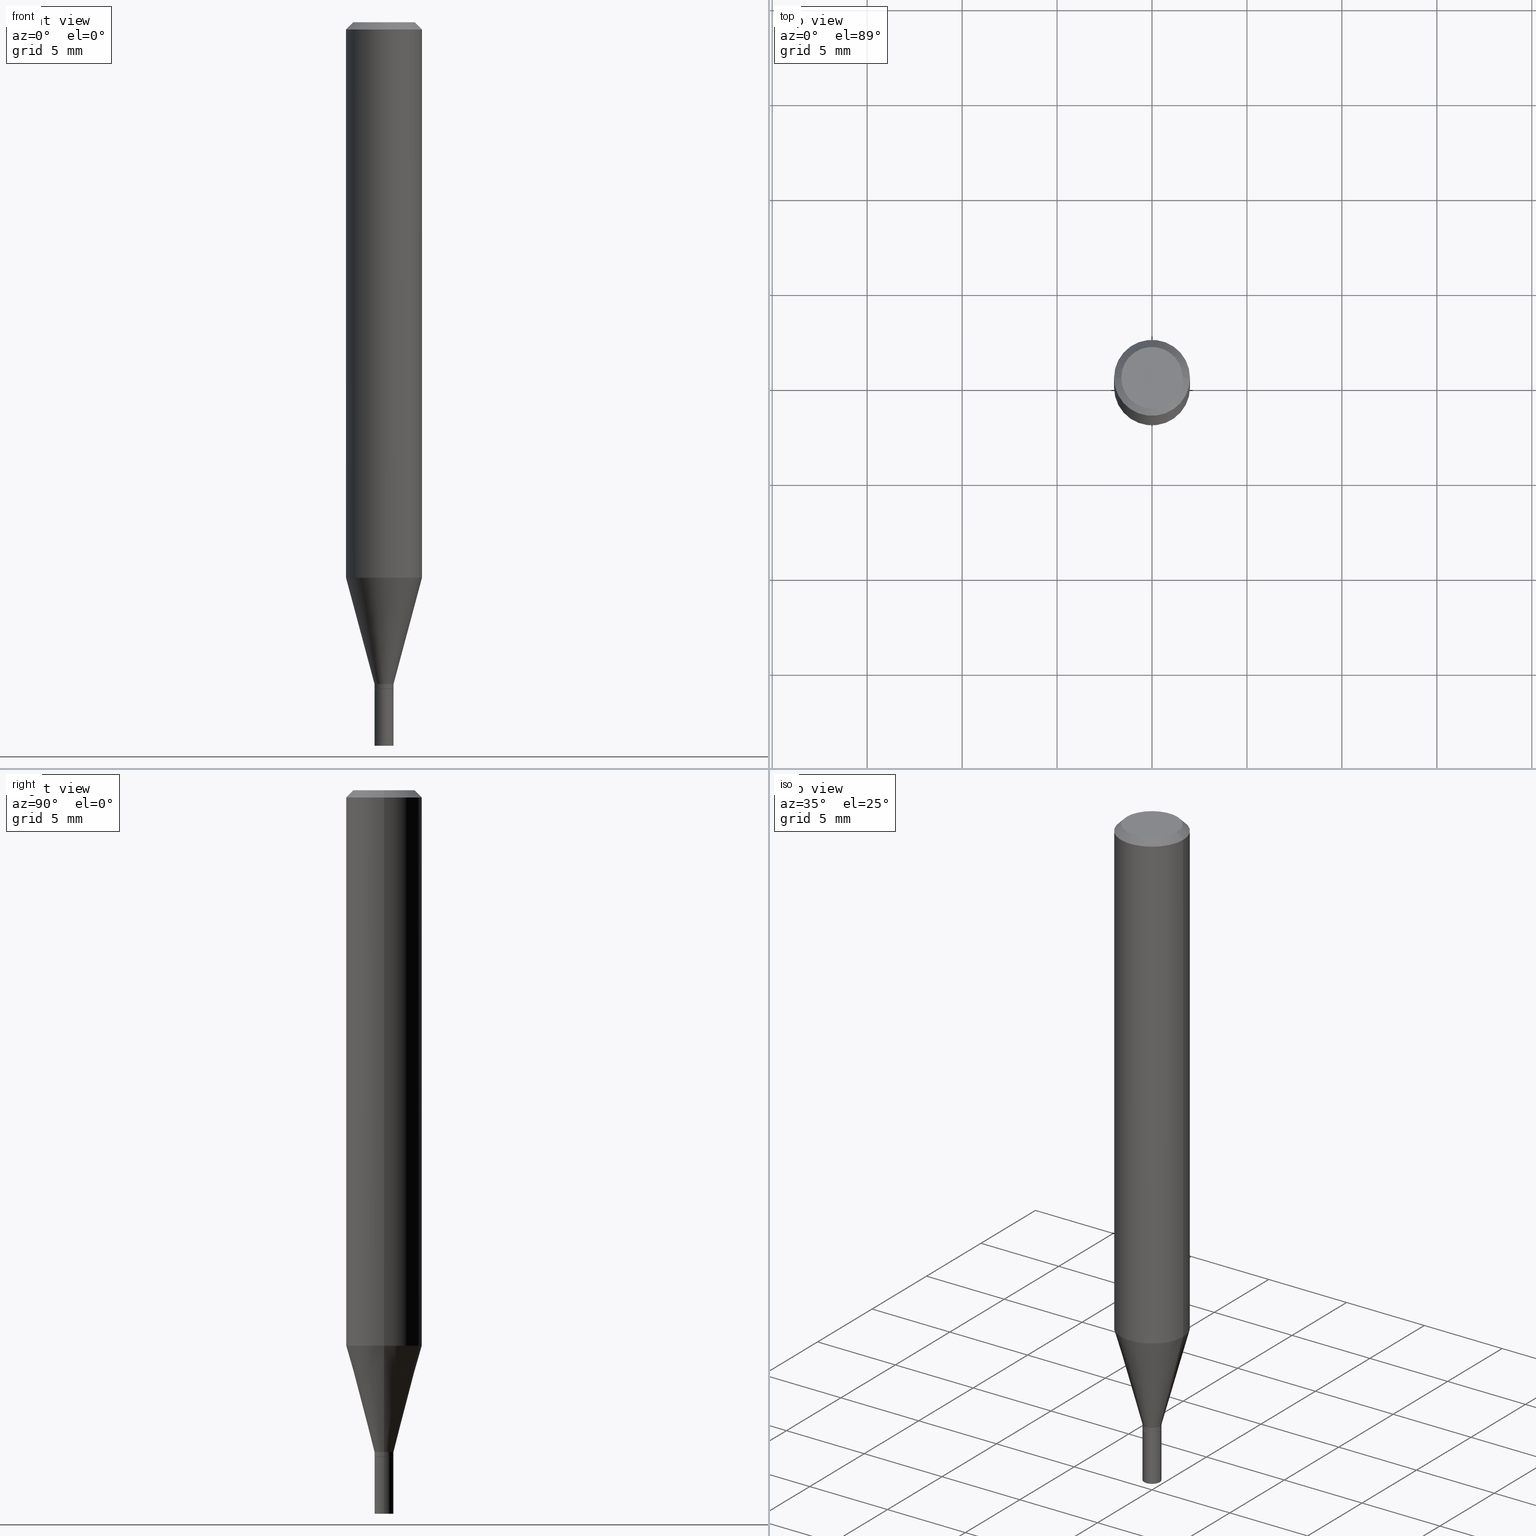
[diagram: canonical four-view strip — front | top / right | iso, engineering-drawing reading convention]
A machine part, canonical four-view strip (front | top / right | iso — engineering-drawing reading convention). The complete STEP part file that produces these views, byte-faithful:
ISO-10303-21;
HEADER;
FILE_DESCRIPTION (( 'STEP AP203' ),
    '1' );
FILE_NAME ('02367.STEP',
    '2024-03-18T20:15:41',
    ( '' ),
    ( '' ),
    'SwSTEP 2.0',
    'SolidWorks 2023',
    '' );
FILE_SCHEMA (( 'CONFIG_CONTROL_DESIGN' ));
ENDSEC;

DATA;
#1 = DIRECTION ( 'NONE',  ( -2.438088387897960049E-29, 3.491481338843145188E-15, 1.000000000000000000 ) ) ;
#2 = EDGE_CURVE ( 'NONE', #303, #4, #144, .T. ) ;
#3 = AXIS2_PLACEMENT_3D ( 'NONE', #102, #423, #57 ) ;
#4 = VERTEX_POINT ( 'NONE', #46 ) ;
#5 = DIRECTION ( 'NONE',  ( -1.000000000000000000, 6.982962677686265922E-15, 0.000000000000000000 ) ) ;
#6 = ORIENTED_EDGE ( 'NONE', *, *, #391, .F. ) ;
#7 = CARTESIAN_POINT ( 'NONE',  ( 3.379393343267239894E-29, -4.824878062147343257E-15, -1.381900000000000128 ) ) ;
#8 = EDGE_CURVE ( 'NONE', #4, #303, #204, .T. ) ;
#9 = ORIENTED_EDGE ( 'NONE', *, *, #327, .F. ) ;
#10 = CC_DESIGN_PERSON_AND_ORGANIZATION_ASSIGNMENT ( #414, #83, ( #49 ) ) ;
#11 = CARTESIAN_POINT ( 'NONE',  ( -0.01969999999999963794, -4.650335477948058966E-15, -1.372000000000000108 ) ) ;
#12 = ORIENTED_EDGE ( 'NONE', *, *, #249, .F. ) ;
#13 = AXIS2_PLACEMENT_3D ( 'NONE', #215, #34, #389 ) ;
#14 = CARTESIAN_POINT ( 'NONE',  ( 0.07875000000000000056, -6.022805309504406221E-16, -0.01499999999999999944 ) ) ;
#15 = CIRCLE ( 'NONE', #285, 0.01969999999999999876 ) ;
#16 = VERTEX_POINT ( 'NONE', #274 ) ;
#17 = LENGTH_MEASURE_WITH_UNIT ( LENGTH_MEASURE( 0.02539999999999999897 ), #344 );
#18 = ORIENTED_EDGE ( 'NONE', *, *, #230, .F. ) ;
#19 = APPROVAL_ROLE ( '' ) ;
#20 = DIRECTION ( 'NONE',  ( 1.000000000000000000, -6.982962677686265922E-15, 4.876176775795935232E-29 ) ) ;
#21 = CONICAL_SURFACE ( 'NONE', #210, 0.01919999999999999832, 0.7853981633974718157 ) ;
#22 = PERSON_AND_ORGANIZATION_ROLE ( 'classification_officer' ) ;
#23 = DIRECTION ( 'NONE',  ( -2.445468806185136597E-29, 3.491481338843145583E-15, 1.000000000000000000 ) ) ;
#24 = AXIS2_PLACEMENT_3D ( 'NONE', #385, #121, #131 ) ;
#25 = CC_DESIGN_DATE_AND_TIME_ASSIGNMENT ( #416, #86, ( #232 ) ) ;
#26 = ORIENTED_EDGE ( 'NONE', *, *, #174, .F. ) ;
#27 = EDGE_CURVE ( 'NONE', #338, #184, #408, .T. ) ;
#28 = CALENDAR_DATE ( 2024, 18, 3 ) ;
#29 = CYLINDRICAL_SURFACE ( 'NONE', #13, 0.01969999999999978019 ) ;
#30 = CARTESIAN_POINT ( 'NONE',  ( -0.01919999999999999832, -4.688453856881404057E-15, -1.381900000000000128 ) ) ;
#31 = CARTESIAN_POINT ( 'NONE',  ( 3.668203209277705088E-31, -5.237222008264718399E-17, -0.01499999999999999944 ) ) ;
#32 = EDGE_LOOP ( 'NONE', ( #162, #300, #190, #116 ) ) ;
#33 = CARTESIAN_POINT ( 'NONE',  ( 0.01969999999999991896, -4.960696686228340179E-15, -1.381400000000000183 ) ) ;
#34 = DIRECTION ( 'NONE',  ( -2.445468806185136597E-29, 3.491481338843145583E-15, 1.000000000000000000 ) ) ;
#35 = AXIS2_PLACEMENT_3D ( 'NONE', #381, #101, #209 ) ;
#36 = DIRECTION ( 'NONE',  ( -2.445468806185136597E-29, 3.491481338843145583E-15, 1.000000000000000000 ) ) ;
#37 = APPROVAL ( #347, 'UNSPECIFIED' ) ;
#38 = ORIENTED_EDGE ( 'NONE', *, *, #77, .T. ) ;
#39 = DIRECTION ( 'NONE',  ( 1.000000000000000000, -6.982962677686265922E-15, 4.876176775795935793E-29 ) ) ;
#40 = EDGE_LOOP ( 'NONE', ( #111, #38 ) ) ;
#41 = AXIS2_PLACEMENT_3D ( 'NONE', #229, #1, #403 ) ;
#42 = DIRECTION ( 'NONE',  ( 1.000000000000000000, -6.982962677686265922E-15, 4.876176775795935232E-29 ) ) ;
#43 = EDGE_LOOP ( 'NONE', ( #454, #194, #264, #372 ) ) ;
#44 = LINE ( 'NONE', #68, #443 ) ;
#45 = VERTEX_POINT ( 'NONE', #419 ) ;
#46 = CARTESIAN_POINT ( 'NONE',  ( -0.07874999999999997280, -3.461315713929970124E-15, -1.151622399813057029 ) ) ;
#47 = VECTOR ( 'NONE', #143, 39.37007874015748143 ) ;
#48 = COORDINATED_UNIVERSAL_TIME_OFFSET ( 5, 0, .BEHIND. ) ;
#49 = PRODUCT ( '02367', '02367', '', ( #161 ) ) ;
#50 = DIRECTION ( 'NONE',  ( -2.445468806185136597E-29, 3.491481338843145583E-15, 1.000000000000000000 ) ) ;
#51 = APPROVAL_ROLE ( '' ) ;
#52 = DIRECTION ( 'NONE',  ( 1.000000000000000000, -6.982962677686265922E-15, 4.947888571036530338E-29 ) ) ;
#53 = PERSON_AND_ORGANIZATION ( #138, #251 ) ;
#54 = CARTESIAN_POINT ( 'NONE',  ( 3.668203209277705088E-31, -5.237222008264718399E-17, -0.01499999999999999944 ) ) ;
#55 = CARTESIAN_POINT ( 'NONE',  ( 3.355183202086007133E-29, -4.790312396892795908E-15, -1.372000000000000108 ) ) ;
#56 = EDGE_CURVE ( 'NONE', #433, #258, #265, .T. ) ;
#57 = DIRECTION ( 'NONE',  ( -1.000000000000000000, 6.982962677686265922E-15, -4.876176775795935793E-29 ) ) ;
#58 = CARTESIAN_POINT ( 'NONE',  ( -1.361870578287719451E-44, 1.944390252692970891E-30, 5.568955019353527485E-16 ) ) ;
#59 = AXIS2_PLACEMENT_3D ( 'NONE', #187, #115, #263 ) ;
#60 = ADVANCED_FACE ( 'NONE', ( #167 ), #237, .T. ) ;
#61 = CARTESIAN_POINT ( 'NONE',  ( 0.01969999999999963794, -4.927876761643212756E-15, -1.372000000000000108 ) ) ;
#62 = EDGE_CURVE ( 'NONE', #16, #105, #191, .T. ) ;
#63 = CARTESIAN_POINT ( 'NONE',  ( 3.668203209277704895E-29, -5.237222008264718177E-15, -1.500000000000000222 ) ) ;
#64 = EDGE_LOOP ( 'NONE', ( #335, #196, #294, #9 ) ) ;
#65 = LINE ( 'NONE', #387, #422 ) ;
#66 = ORIENTED_EDGE ( 'NONE', *, *, #149, .F. ) ;
#67 = LOCAL_TIME ( 16, 15, 41.00000000000000000, #311 ) ;
#68 = CARTESIAN_POINT ( 'NONE',  ( 0.01969999999999963794, -4.927876761643212756E-15, -1.372000000000000108 ) ) ;
#69 = ORIENTED_EDGE ( 'NONE', *, *, #62, .T. ) ;
#70 = DIRECTION ( 'NONE',  ( -2.445468806185136597E-29, 3.491481338843145583E-15, 1.000000000000000000 ) ) ;
#71 = ORIENTED_EDGE ( 'NONE', *, *, #195, .F. ) ;
#72 = PLANE ( 'NONE',  #383 ) ;
#73 = ADVANCED_FACE ( 'NONE', ( #84 ), #199, .T. ) ;
#74 = ORIENTED_EDGE ( 'NONE', *, *, #429, .T. ) ;
#75 = CIRCLE ( 'NONE', #179, 0.01969999999999991896 ) ;
#76 = CARTESIAN_POINT ( 'NONE',  ( -0.07875000000000000056, 4.975360907851462665E-16, -0.01499999999999999944 ) ) ;
#77 = EDGE_CURVE ( 'NONE', #168, #346, #227, .T. ) ;
#78 = VERTEX_POINT ( 'NONE', #345 ) ;
#79 = LINE ( 'NONE', #11, #426 ) ;
#80 = AXIS2_PLACEMENT_3D ( 'NONE', #235, #267, #417 ) ;
#81 = EDGE_LOOP ( 'NONE', ( #404, #182, #324, #453 ) ) ;
#82 = ORIENTED_EDGE ( 'NONE', *, *, #8, .T. ) ;
#83 = PERSON_AND_ORGANIZATION_ROLE ( 'design_owner' ) ;
#84 = FACE_OUTER_BOUND ( 'NONE', #156, .T. ) ;
#85 = APPROVAL_PERSON_ORGANIZATION ( #198, #37, #19 ) ;
#86 = DATE_TIME_ROLE ( 'creation_date' ) ;
#87 = DIRECTION ( 'NONE',  ( 1.000000000000000000, -6.982962677686267499E-15, 4.876176775795935793E-29 ) ) ;
#88 = APPROVAL ( #357, 'UNSPECIFIED' ) ;
#89 = ADVANCED_FACE ( 'NONE', ( #447 ), #124, .T. ) ;
#90 = PERSON_AND_ORGANIZATION ( #138, #251 ) ;
#91 = FACE_OUTER_BOUND ( 'NONE', #439, .T. ) ;
#92 =( NAMED_UNIT ( * ) SI_UNIT ( $, .STERADIAN. ) SOLID_ANGLE_UNIT ( ) );
#93 = DIRECTION ( 'NONE',  ( 1.000000000000000000, -6.982962677686265922E-15, 4.876176775795935232E-29 ) ) ;
#94 = ADVANCED_FACE ( 'NONE', ( #91 ), #165, .T. ) ;
#95 = CC_DESIGN_APPROVAL ( #88, ( #241 ) ) ;
#96 = EDGE_CURVE ( 'NONE', #130, #45, #243, .T. ) ;
#97 = DIRECTION ( 'NONE',  ( 1.000000000000000000, -6.982962677686252511E-15, 0.000000000000000000 ) ) ;
#98 = DIRECTION ( 'NONE',  ( -2.445468806185136597E-29, 3.491481338843145583E-15, 1.000000000000000000 ) ) ;
#99 = DIRECTION ( 'NONE',  ( 2.438088387897960049E-29, -3.491481338843145188E-15, -1.000000000000000000 ) ) ;
#100 = AXIS2_PLACEMENT_3D ( 'NONE', #145, #394, #257 ) ;
#101 = DIRECTION ( 'NONE',  ( -2.445468806185136597E-29, 3.491481338843145583E-15, 1.000000000000000000 ) ) ;
#102 = CARTESIAN_POINT ( 'NONE',  ( 4.451638707024993845E-16, 0.06375000000000000111, 5.586581561642585620E-17 ) ) ;
#103 = EDGE_CURVE ( 'NONE', #45, #256, #245, .T. ) ;
#104 = FACE_OUTER_BOUND ( 'NONE', #332, .T. ) ;
#105 = VERTEX_POINT ( 'NONE', #314 ) ;
#106 = DIRECTION ( 'NONE',  ( 1.000000000000000000, -6.982962677686252511E-15, 0.000000000000000000 ) ) ;
#107 = EDGE_CURVE ( 'NONE', #105, #368, #65, .T. ) ;
#108 = ORIENTED_EDGE ( 'NONE', *, *, #400, .F. ) ;
#109 = EDGE_CURVE ( 'NONE', #4, #258, #424, .T. ) ;
#110 = DIRECTION ( 'NONE',  ( 1.000000000000000000, -6.982962677686252511E-15, 0.000000000000000000 ) ) ;
#111 = ORIENTED_EDGE ( 'NONE', *, *, #149, .T. ) ;
#112 = CARTESIAN_POINT ( 'NONE',  ( 3.668203209277705088E-31, -5.237222008264718399E-17, -0.01499999999999999944 ) ) ;
#113 = ORIENTED_EDGE ( 'NONE', *, *, #313, .T. ) ;
#114 = LOCAL_TIME ( 16, 15, 41.00000000000000000, #350 ) ;
#115 = DIRECTION ( 'NONE',  ( 2.445468806185136597E-29, -3.491481338843145583E-15, -1.000000000000000000 ) ) ;
#116 = ORIENTED_EDGE ( 'NONE', *, *, #27, .F. ) ;
#117 = PERSON_AND_ORGANIZATION ( #138, #251 ) ;
#118 = VERTEX_POINT ( 'NONE', #462 ) ;
#119 = DIRECTION ( 'NONE',  ( 1.000000000000000000, 0.000000000000000000, 0.000000000000000000 ) ) ;
#120 = MANIFOLD_SOLID_BREP ( 'Body-Move/Copy2[2]', #353 ) ;
#121 = DIRECTION ( 'NONE',  ( -2.445468806185136597E-29, 3.491481338843145583E-15, 1.000000000000000000 ) ) ;
#122 = CARTESIAN_POINT ( 'NONE',  ( 0.000000000000000000, 0.000000000000000000, 0.000000000000000000 ) ) ;
#123 = AXIS2_PLACEMENT_3D ( 'NONE', #415, #23, #87 ) ;
#124 = CYLINDRICAL_SURFACE ( 'NONE', #150, 0.01969999999999999876 ) ;
#125 = AXIS2_PLACEMENT_3D ( 'NONE', #177, #459, #97 ) ;
#126 = APPROVAL_DATE_TIME ( #309, #37 ) ;
#127 = CARTESIAN_POINT ( 'NONE',  ( 0.000000000000000000, 0.000000000000000000, 0.000000000000000000 ) ) ;
#128 = DATE_AND_TIME ( #452, #67 ) ;
#129 = ADVANCED_FACE ( 'NONE', ( #392 ), #428, .T. ) ;
#130 = VERTEX_POINT ( 'NONE', #430 ) ;
#131 = DIRECTION ( 'NONE',  ( 1.000000000000000000, -6.982962677686268288E-15, 0.000000000000000000 ) ) ;
#132 = ADVANCED_FACE ( 'NONE', ( #282 ), #29, .T. ) ;
#133 = DIRECTION ( 'NONE',  ( -2.445468806185136597E-29, 3.491481338843145583E-15, 1.000000000000000000 ) ) ;
#134 = AXIS2_PLACEMENT_3D ( 'NONE', #112, #154, #5 ) ;
#135 = AXIS2_PLACEMENT_3D ( 'NONE', #31, #318, #320 ) ;
#136 = APPROVAL_DATE_TIME ( #208, #88 ) ;
#137 = DIRECTION ( 'NONE',  ( -1.000000000000000000, 6.982962677686265922E-15, -4.876176775795935793E-29 ) ) ;
#138 = PERSON ( 'UNSPECIFIED', 'UNSPECIFIED', 'UNSPECIFIED', ('UNSPECIFIED'), ('UNSPECIFIED'), ('UNSPECIFIED') ) ;
#139 = CARTESIAN_POINT ( 'NONE',  ( 0.01919999999999999832, -4.958950945558919464E-15, -1.381900000000000128 ) ) ;
#140 = LINE ( 'NONE', #212, #254 ) ;
#141 = PRODUCT_DEFINITION_FORMATION_WITH_SPECIFIED_SOURCE ( 'ANY', '', #49, .NOT_KNOWN. ) ;
#142 = SHAPE_DEFINITION_REPRESENTATION ( #446, #328 ) ;
#143 = DIRECTION ( 'NONE',  ( -2.445468806185136877E-29, 3.491481338843145188E-15, 1.000000000000000000 ) ) ;
#144 = CIRCLE ( 'NONE', #80, 0.07875000000000000056 ) ;
#145 = CARTESIAN_POINT ( 'NONE',  ( 3.355183202086007133E-29, -4.790312396892795908E-15, -1.372000000000000108 ) ) ;
#146 = DIRECTION ( 'NONE',  ( -2.438088387897960049E-29, 3.491481338843145188E-15, 1.000000000000000000 ) ) ;
#147 = ORIENTED_EDGE ( 'NONE', *, *, #163, .F. ) ;
#148 = DIRECTION ( 'NONE',  ( 1.000000000000000000, -6.982962677686258033E-15, 0.000000000000000000 ) ) ;
#149 = EDGE_CURVE ( 'NONE', #346, #168, #351, .T. ) ;
#150 = AXIS2_PLACEMENT_3D ( 'NONE', #348, #352, #20 ) ;
#151 = ORIENTED_EDGE ( 'NONE', *, *, #8, .F. ) ;
#152 = CARTESIAN_POINT ( 'NONE',  ( -0.06375000000000000111, 4.713499807438238115E-16, 5.568955019353495931E-16 ) ) ;
#153 = ORIENTED_EDGE ( 'NONE', *, *, #109, .T. ) ;
#154 = DIRECTION ( 'NONE',  ( 2.445468806185136597E-29, -3.491481338843145583E-15, -1.000000000000000000 ) ) ;
#155 = ADVANCED_FACE ( 'NONE', ( #425 ), #458, .F. ) ;
#156 = EDGE_LOOP ( 'NONE', ( #441, #153, #409, #18 ) ) ;
#157 = CONICAL_SURFACE ( 'NONE', #134, 0.07875000000000000056, 0.7853981633974298493 ) ;
#158 = SECURITY_CLASSIFICATION_LEVEL ( 'unclassified' ) ;
#159 = VECTOR ( 'NONE', #358, 39.37007874015748143 ) ;
#160 = APPLICATION_CONTEXT ( 'configuration controlled 3d designs of mechanical parts and assemblies' ) ;
#161 = MECHANICAL_CONTEXT ( 'NONE', #253, 'mechanical' ) ;
#162 = ORIENTED_EDGE ( 'NONE', *, *, #214, .F. ) ;
#163 = EDGE_CURVE ( 'NONE', #368, #78, #203, .T. ) ;
#164 = COORDINATED_UNIVERSAL_TIME_OFFSET ( 5, 0, .BEHIND. ) ;
#165 = CYLINDRICAL_SURFACE ( 'NONE', #166, 0.07875000000000000056 ) ;
#166 = AXIS2_PLACEMENT_3D ( 'NONE', #276, #418, #239 ) ;
#167 = FACE_OUTER_BOUND ( 'NONE', #398, .T. ) ;
#168 = VERTEX_POINT ( 'NONE', #456 ) ;
#169 = DIMENSIONAL_EXPONENTS ( 1.000000000000000000, 0.000000000000000000, 0.000000000000000000, 0.000000000000000000, 0.000000000000000000, 0.000000000000000000, 0.000000000000000000 ) ;
#170 = DIRECTION ( 'NONE',  ( 1.000000000000000000, -6.982962677686278543E-15, 0.000000000000000000 ) ) ;
#171 = LOCAL_TIME ( 16, 15, 41.00000000000000000, #48 ) ;
#172 = AXIS2_PLACEMENT_3D ( 'NONE', #178, #99, #137 ) ;
#173 = PLANE ( 'NONE',  #3 ) ;
#174 = EDGE_CURVE ( 'NONE', #258, #433, #343, .T. ) ;
#175 = PRODUCT_RELATED_PRODUCT_CATEGORY ( 'detail', '', ( #49 ) ) ;
#176 = PERSON_AND_ORGANIZATION ( #138, #251 ) ;
#177 = CARTESIAN_POINT ( 'NONE',  ( 3.379393343267239894E-29, -4.824878062147343257E-15, -1.381900000000000128 ) ) ;
#178 = CARTESIAN_POINT ( 'NONE',  ( 1.375643647504532094E-16, 0.01969999999999517276, -1.381900000000000128 ) ) ;
#179 = AXIS2_PLACEMENT_3D ( 'NONE', #183, #181, #148 ) ;
#180 = CYLINDRICAL_SURFACE ( 'NONE', #421, 0.01969999999999999876 ) ;
#181 = DIRECTION ( 'NONE',  ( -2.445468806185136597E-29, 3.491481338843145583E-15, 1.000000000000000000 ) ) ;
#182 = ORIENTED_EDGE ( 'NONE', *, *, #197, .T. ) ;
#183 = CARTESIAN_POINT ( 'NONE',  ( 3.378170608864148213E-29, -4.823132321477921753E-15, -1.381400000000000183 ) ) ;
#184 = VERTEX_POINT ( 'NONE', #61 ) ;
#185 = CARTESIAN_POINT ( 'NONE',  ( 0.07874999999999997280, -4.570776429208843061E-15, -1.151622399813057029 ) ) ;
#186 = ORIENTED_EDGE ( 'NONE', *, *, #405, .F. ) ;
#187 = CARTESIAN_POINT ( 'NONE',  ( 3.668203209277705088E-31, -5.237222008264718399E-17, -0.01499999999999999944 ) ) ;
#188 = ORIENTED_EDGE ( 'NONE', *, *, #107, .T. ) ;
#189 = APPLICATION_PROTOCOL_DEFINITION ( 'international standard', 'config_control_design', 1994, #160 ) ;
#190 = ORIENTED_EDGE ( 'NONE', *, *, #275, .T. ) ;
#191 = CIRCLE ( 'NONE', #460, 0.01969999999999999876 ) ;
#192 = CC_DESIGN_SECURITY_CLASSIFICATION ( #241, ( #141 ) ) ;
#193 = DIRECTION ( 'NONE',  ( -0.2588190451025214611, 5.211531920934551042E-15, 0.9659258262890682012 ) ) ;
#194 = ORIENTED_EDGE ( 'NONE', *, *, #96, .T. ) ;
#195 = EDGE_CURVE ( 'NONE', #168, #433, #140, .T. ) ;
#196 = ORIENTED_EDGE ( 'NONE', *, *, #195, .T. ) ;
#197 = EDGE_CURVE ( 'NONE', #130, #118, #386, .T. ) ;
#198 = PERSON_AND_ORGANIZATION ( #138, #251 ) ;
#199 = CYLINDRICAL_SURFACE ( 'NONE', #388, 0.07875000000000000056 ) ;
#200 = PERSON_AND_ORGANIZATION_ROLE ( 'creator' ) ;
#201 = VECTOR ( 'NONE', #442, 39.37007874015748143 ) ;
#202 = DIRECTION ( 'NONE',  ( -2.445468806185136597E-29, 3.491481338843145583E-15, 1.000000000000000000 ) ) ;
#203 = CIRCLE ( 'NONE', #281, 0.01969999999999999876 ) ;
#204 = CIRCLE ( 'NONE', #24, 0.07875000000000000056 ) ;
#205 = ORIENTED_EDGE ( 'NONE', *, *, #214, .T. ) ;
#206 = DIRECTION ( 'NONE',  ( -2.445468806185136877E-29, 3.491481338843145188E-15, 1.000000000000000000 ) ) ;
#207 = ADVANCED_FACE ( 'NONE', ( #280 ), #173, .F. ) ;
#208 = DATE_AND_TIME ( #28, #342 ) ;
#209 = DIRECTION ( 'NONE',  ( 1.000000000000000000, -6.982962677686252511E-15, 0.000000000000000000 ) ) ;
#210 = AXIS2_PLACEMENT_3D ( 'NONE', #397, #329, #110 ) ;
#211 = ADVANCED_FACE ( 'NONE', ( #284 ), #333, .T. ) ;
#212 = CARTESIAN_POINT ( 'NONE',  ( 0.07875000000000000056, -5.926364374071552647E-16, -0.01499999999999999944 ) ) ;
#213 = DIRECTION ( 'NONE',  ( -2.445468806185136597E-29, 3.491481338843145583E-15, 1.000000000000000000 ) ) ;
#214 = EDGE_CURVE ( 'NONE', #118, #338, #317, .T. ) ;
#215 = CARTESIAN_POINT ( 'NONE',  ( 0.000000000000000000, 0.000000000000000000, 0.000000000000000000 ) ) ;
#216 = AXIS2_PLACEMENT_3D ( 'NONE', #369, #36, #106 ) ;
#217 = DIRECTION ( 'NONE',  ( 0.2588190451025214611, 1.565188264969621573E-15, 0.9659258262890682012 ) ) ;
#218 = ORIENTED_EDGE ( 'NONE', *, *, #402, .T. ) ;
#219 = FACE_OUTER_BOUND ( 'NONE', #228, .T. ) ;
#220 = ORIENTED_EDGE ( 'NONE', *, *, #249, .T. ) ;
#221 = DIRECTION ( 'NONE',  ( -2.445468806185136597E-29, 3.491481338843145583E-15, 1.000000000000000000 ) ) ;
#222 = EDGE_LOOP ( 'NONE', ( #466, #12 ) ) ;
#223 = CC_DESIGN_PERSON_AND_ORGANIZATION_ASSIGNMENT ( #53, #22, ( #241 ) ) ;
#224 = AXIS2_PLACEMENT_3D ( 'NONE', #455, #287, #355 ) ;
#225 = CIRCLE ( 'NONE', #457, 0.01969999999999999876 ) ;
#226 = DIRECTION ( 'NONE',  ( 1.000000000000000000, -6.982962677686258033E-15, 0.000000000000000000 ) ) ;
#227 = CIRCLE ( 'NONE', #384, 0.06375000000000000111 ) ;
#228 = EDGE_LOOP ( 'NONE', ( #290, #220, #363, #147 ) ) ;
#229 = CARTESIAN_POINT ( 'NONE',  ( 3.576687321579069994E-29, -5.368277968210015545E-15, -1.500000000000000222 ) ) ;
#230 = EDGE_CURVE ( 'NONE', #303, #433, #427, .T. ) ;
#231 =( CONVERSION_BASED_UNIT ( 'INCH', #17 ) LENGTH_UNIT ( ) NAMED_UNIT ( #169 ) );
#232 = PRODUCT_DEFINITION ( 'UNKNOWN', '', #141, #261 ) ;
#233 = CIRCLE ( 'NONE', #100, 0.01969999999999963794 ) ;
#234 = APPROVAL_STATUS ( 'not_yet_approved' ) ;
#235 = CARTESIAN_POINT ( 'NONE',  ( 2.816256655246898649E-29, -4.020868118341048926E-15, -1.151622399813057029 ) ) ;
#236 =( NAMED_UNIT ( * ) PLANE_ANGLE_UNIT ( ) SI_UNIT ( $, .RADIAN. ) );
#237 = CYLINDRICAL_SURFACE ( 'NONE', #123, 0.01969999999999978019 ) ;
#238 = PERSON_AND_ORGANIZATION ( #138, #251 ) ;
#239 = DIRECTION ( 'NONE',  ( 1.000000000000000000, -6.982962677686265922E-15, 4.876176775795935232E-29 ) ) ;
#240 = APPROVAL_DATE_TIME ( #305, #379 ) ;
#241 = SECURITY_CLASSIFICATION ( '', '', #158 ) ;
#242 = CARTESIAN_POINT ( 'NONE',  ( -1.361870578287719451E-44, 1.944390252692970891E-30, 5.568955019353527485E-16 ) ) ;
#243 = CIRCLE ( 'NONE', #35, 0.01919999999999999832 ) ;
#244 = CARTESIAN_POINT ( 'NONE',  ( -0.01969999999999978019, 1.399769189447381748E-16, -9.690302127802057404E-31 ) ) ;
#245 = LINE ( 'NONE', #139, #159 ) ;
#246 = DIRECTION ( 'NONE',  ( 1.000000000000000000, -6.982962677686265922E-15, 4.947888571036530338E-29 ) ) ;
#247 = CARTESIAN_POINT ( 'NONE',  ( 0.07875000000000000056, -5.499083108677934443E-16, 3.839989210939299016E-30 ) ) ;
#248 = DIRECTION ( 'NONE',  ( -2.445468806185136877E-29, 3.491481338843145188E-15, 1.000000000000000000 ) ) ;
#249 = EDGE_CURVE ( 'NONE', #105, #16, #225, .T. ) ;
#250 = DIRECTION ( 'NONE',  ( -2.445468806185136597E-29, 3.491481338843145583E-15, 1.000000000000000000 ) ) ;
#251 = ORGANIZATION ( 'UNSPECIFIED', 'UNSPECIFIED', '' ) ;
#252 = ORIENTED_EDGE ( 'NONE', *, *, #270, .F. ) ;
#253 = APPLICATION_CONTEXT ( 'configuration controlled 3d designs of mechanical parts and assemblies' ) ;
#254 = VECTOR ( 'NONE', #356, 39.37007874015748854 ) ;
#255 = FACE_OUTER_BOUND ( 'NONE', #43, .T. ) ;
#256 = VERTEX_POINT ( 'NONE', #33 ) ;
#257 = DIRECTION ( 'NONE',  ( 1.000000000000000000, -6.982962677686258822E-15, 0.000000000000000000 ) ) ;
#258 = VERTEX_POINT ( 'NONE', #407 ) ;
#259 = FACE_OUTER_BOUND ( 'NONE', #260, .T. ) ;
#260 = EDGE_LOOP ( 'NONE', ( #108, #297 ) ) ;
#261 = DESIGN_CONTEXT ( 'detailed design', #160, 'design' ) ;
#262 = LOCAL_TIME ( 16, 15, 41.00000000000000000, #164 ) ;
#263 = DIRECTION ( 'NONE',  ( -1.000000000000000000, 6.982962677686265922E-15, 0.000000000000000000 ) ) ;
#264 = ORIENTED_EDGE ( 'NONE', *, *, #103, .T. ) ;
#265 = CIRCLE ( 'NONE', #323, 0.07875000000000000056 ) ;
#266 = DATE_TIME_ROLE ( 'classification_date' ) ;
#267 = DIRECTION ( 'NONE',  ( -2.445468806185136597E-29, 3.491481338843145583E-15, 1.000000000000000000 ) ) ;
#268 = APPLICATION_PROTOCOL_DEFINITION ( 'international standard', 'config_control_design', 1994, #253 ) ;
#269 = DIRECTION ( 'NONE',  ( -2.445468806185136597E-29, 3.491481338843145583E-15, 1.000000000000000000 ) ) ;
#270 = EDGE_CURVE ( 'NONE', #78, #368, #15, .T. ) ;
#271 = VECTOR ( 'NONE', #464, 39.37007874015748143 ) ;
#272 = CALENDAR_DATE ( 2024, 18, 3 ) ;
#273 = VECTOR ( 'NONE', #206, 39.37007874015748143 ) ;
#274 = CARTESIAN_POINT ( 'NONE',  ( 0.01969999999999999876, -5.374786373015138180E-15, -1.500000000000000222 ) ) ;
#275 = EDGE_CURVE ( 'NONE', #256, #184, #366, .T. ) ;
#276 = CARTESIAN_POINT ( 'NONE',  ( 0.000000000000000000, 0.000000000000000000, 0.000000000000000000 ) ) ;
#277 = DIRECTION ( 'NONE',  ( 0.000000000000000000, 0.000000000000000000, 1.000000000000000000 ) ) ;
#278 = DIRECTION ( 'NONE',  ( 1.000000000000000000, -6.982962677686278543E-15, 0.000000000000000000 ) ) ;
#279 = AXIS2_PLACEMENT_3D ( 'NONE', #122, #277, #119 ) ;
#280 = FACE_OUTER_BOUND ( 'NONE', #40, .T. ) ;
#281 = AXIS2_PLACEMENT_3D ( 'NONE', #283, #133, #170 ) ;
#282 = FACE_OUTER_BOUND ( 'NONE', #32, .T. ) ;
#283 = CARTESIAN_POINT ( 'NONE',  ( 3.379393343267239894E-29, -4.824878062147343257E-15, -1.381900000000000128 ) ) ;
#284 = FACE_OUTER_BOUND ( 'NONE', #81, .T. ) ;
#285 = AXIS2_PLACEMENT_3D ( 'NONE', #7, #70, #371 ) ;
#286 = AXIS2_PLACEMENT_3D ( 'NONE', #58, #98, #246 ) ;
#287 = DIRECTION ( 'NONE',  ( -2.445468806185136597E-29, 3.491481338843145583E-15, 1.000000000000000000 ) ) ;
#288 = CLOSED_SHELL ( 'NONE', ( #89, #382, #289, #155 ) ) ;
#289 = ADVANCED_FACE ( 'NONE', ( #219 ), #180, .T. ) ;
#290 = ORIENTED_EDGE ( 'NONE', *, *, #107, .F. ) ;
#291 = CARTESIAN_POINT ( 'NONE',  ( 3.378170608864148213E-29, -4.823132321477921753E-15, -1.381400000000000183 ) ) ;
#292 = EDGE_LOOP ( 'NONE', ( #69, #188, #252, #186 ) ) ;
#293 = FACE_OUTER_BOUND ( 'NONE', #222, .T. ) ;
#294 = ORIENTED_EDGE ( 'NONE', *, *, #56, .T. ) ;
#295 = ADVANCED_FACE ( 'NONE', ( #104 ), #374, .T. ) ;
#296 = LINE ( 'NONE', #438, #201 ) ;
#297 = ORIENTED_EDGE ( 'NONE', *, *, #96, .F. ) ;
#298 = CC_DESIGN_PERSON_AND_ORGANIZATION_ASSIGNMENT ( #90, #339, ( #232 ) ) ;
#299 = CARTESIAN_POINT ( 'NONE',  ( -0.01969999999999999876, -4.891073116261291013E-15, -1.381900000000000128 ) ) ;
#300 = ORIENTED_EDGE ( 'NONE', *, *, #340, .T. ) ;
#301 = ADVANCED_FACE ( 'NONE', ( #334 ), #157, .T. ) ;
#302 = CARTESIAN_POINT ( 'NONE',  ( -0.01969999999999963794, -4.055825595939014545E-15, -1.372000000000000108 ) ) ;
#303 = VERTEX_POINT ( 'NONE', #185 ) ;
#304 =( GEOMETRIC_REPRESENTATION_CONTEXT ( 3 ) GLOBAL_UNCERTAINTY_ASSIGNED_CONTEXT ( ( #336 ) ) GLOBAL_UNIT_ASSIGNED_CONTEXT ( ( #231, #236, #92 ) ) REPRESENTATION_CONTEXT ( 'NONE', 'WORKASPACE' ) );
#305 = DATE_AND_TIME ( #375, #114 ) ;
#306 = ORIENTED_EDGE ( 'NONE', *, *, #270, .T. ) ;
#307 = ORIENTED_EDGE ( 'NONE', *, *, #174, .T. ) ;
#308 = CONICAL_SURFACE ( 'NONE', #59, 0.07875000000000000056, 0.7853981633974298493 ) ;
#309 = DATE_AND_TIME ( #450, #262 ) ;
#310 = CARTESIAN_POINT ( 'NONE',  ( 3.668203209277704895E-29, -5.237222008264718177E-15, -1.500000000000000222 ) ) ;
#311 = COORDINATED_UNIVERSAL_TIME_OFFSET ( 5, 0, .BEHIND. ) ;
#312 = DIRECTION ( 'NONE',  ( -2.445468806185136597E-29, 3.491481338843145583E-15, 1.000000000000000000 ) ) ;
#313 = EDGE_CURVE ( 'NONE', #184, #338, #233, .T. ) ;
#314 = CARTESIAN_POINT ( 'NONE',  ( -0.01969999999999999876, -4.891073116261291013E-15, -1.500000000000000222 ) ) ;
#315 = APPROVAL_PERSON_ORGANIZATION ( #176, #88, #319 ) ;
#316 = DIRECTION ( 'NONE',  ( -0.7071067811865642261, 7.493145998870414114E-15, 0.7071067811865309194 ) ) ;
#317 = LINE ( 'NONE', #244, #273 ) ;
#318 = DIRECTION ( 'NONE',  ( -2.445468806185136597E-29, 3.491481338843145583E-15, 1.000000000000000000 ) ) ;
#319 = APPROVAL_ROLE ( '' ) ;
#320 = DIRECTION ( 'NONE',  ( 1.000000000000000000, -6.982962677686265922E-15, 0.000000000000000000 ) ) ;
#321 = CC_DESIGN_APPROVAL ( #37, ( #141 ) ) ;
#322 = LINE ( 'NONE', #76, #395 ) ;
#323 = AXIS2_PLACEMENT_3D ( 'NONE', #54, #269, #377 ) ;
#324 = ORIENTED_EDGE ( 'NONE', *, *, #402, .F. ) ;
#325 = DIRECTION ( 'NONE',  ( -2.445468806185136597E-29, 3.491481338843145583E-15, 1.000000000000000000 ) ) ;
#326 = EDGE_LOOP ( 'NONE', ( #306, #354 ) ) ;
#327 = EDGE_CURVE ( 'NONE', #346, #258, #322, .T. ) ;
#328 = ADVANCED_BREP_SHAPE_REPRESENTATION ( '02367', ( #432, #120, #279 ), #304 ) ;
#329 = DIRECTION ( 'NONE',  ( -2.445468806185136597E-29, 3.491481338843145583E-15, 1.000000000000000000 ) ) ;
#330 = CC_DESIGN_APPROVAL ( #379, ( #232 ) ) ;
#331 = AXIS2_PLACEMENT_3D ( 'NONE', #291, #250, #226 ) ;
#332 = EDGE_LOOP ( 'NONE', ( #365, #401, #396, #151 ) ) ;
#333 = CONICAL_SURFACE ( 'NONE', #125, 0.01919999999999999832, 0.7853981633974718157 ) ;
#334 = FACE_OUTER_BOUND ( 'NONE', #64, .T. ) ;
#335 = ORIENTED_EDGE ( 'NONE', *, *, #77, .F. ) ;
#336 = UNCERTAINTY_MEASURE_WITH_UNIT (LENGTH_MEASURE( 1.000000000000000082E-05 ), #231, 'distance_accuracy_value', 'NONE');
#337 = DIRECTION ( 'NONE',  ( -0.7071067811865343611, 2.468850131082119799E-15, -0.7071067811865604513 ) ) ;
#338 = VERTEX_POINT ( 'NONE', #302 ) ;
#339 = PERSON_AND_ORGANIZATION_ROLE ( 'creator' ) ;
#340 = EDGE_CURVE ( 'NONE', #118, #256, #448, .T. ) ;
#341 = ORIENTED_EDGE ( 'NONE', *, *, #230, .T. ) ;
#342 = LOCAL_TIME ( 16, 15, 41.00000000000000000, #461 ) ;
#343 = CIRCLE ( 'NONE', #135, 0.07875000000000000056 ) ;
#344 =( LENGTH_UNIT ( ) NAMED_UNIT ( * ) SI_UNIT ( $, .METRE. ) );
#345 = CARTESIAN_POINT ( 'NONE',  ( 0.01969999999999999876, -4.962442426897762471E-15, -1.381900000000000128 ) ) ;
#346 = VERTEX_POINT ( 'NONE', #152 ) ;
#347 = APPROVAL_STATUS ( 'not_yet_approved' ) ;
#348 = CARTESIAN_POINT ( 'NONE',  ( 0.000000000000000000, 0.000000000000000000, 0.000000000000000000 ) ) ;
#349 = APPROVAL_PERSON_ORGANIZATION ( #410, #379, #51 ) ;
#350 = COORDINATED_UNIVERSAL_TIME_OFFSET ( 5, 0, .BEHIND. ) ;
#351 = CIRCLE ( 'NONE', #286, 0.06375000000000000111 ) ;
#352 = DIRECTION ( 'NONE',  ( -2.445468806185136597E-29, 3.491481338843145583E-15, 1.000000000000000000 ) ) ;
#353 = CLOSED_SHELL ( 'NONE', ( #60, #211, #301, #73, #129, #295, #94, #420, #207, #362, #412, #132 ) ) ;
#354 = ORIENTED_EDGE ( 'NONE', *, *, #163, .T. ) ;
#355 = DIRECTION ( 'NONE',  ( 1.000000000000000000, -6.982962677686258822E-15, 0.000000000000000000 ) ) ;
#356 = DIRECTION ( 'NONE',  ( 0.7071067811865343611, -7.319954787623210291E-15, -0.7071067811865604513 ) ) ;
#357 = APPROVAL_STATUS ( 'not_yet_approved' ) ;
#358 = DIRECTION ( 'NONE',  ( 0.7071067811865642261, -2.468850131082431399E-15, 0.7071067811865309194 ) ) ;
#359 = DIRECTION ( 'NONE',  ( 1.000000000000000000, -6.982962677686278543E-15, 0.000000000000000000 ) ) ;
#360 = CARTESIAN_POINT ( 'NONE',  ( -0.07875000000000000056, 5.595524044110789003E-16, -3.873661383575737792E-30 ) ) ;
#361 = CARTESIAN_POINT ( 'NONE',  ( 0.01969999999999978019, -1.375643647504179325E-16, 9.606068248317886369E-31 ) ) ;
#362 = ADVANCED_FACE ( 'NONE', ( #259 ), #72, .F. ) ;
#363 = ORIENTED_EDGE ( 'NONE', *, *, #405, .T. ) ;
#364 = CARTESIAN_POINT ( 'NONE',  ( 3.379393343267239894E-29, -4.824878062147343257E-15, -1.381900000000000128 ) ) ;
#365 = ORIENTED_EDGE ( 'NONE', *, *, #429, .F. ) ;
#366 = LINE ( 'NONE', #361, #271 ) ;
#367 = CIRCLE ( 'NONE', #216, 0.01919999999999999832 ) ;
#368 = VERTEX_POINT ( 'NONE', #299 ) ;
#369 = CARTESIAN_POINT ( 'NONE',  ( 3.379393343267239894E-29, -4.824878062147343257E-15, -1.381900000000000128 ) ) ;
#370 = ORIENTED_EDGE ( 'NONE', *, *, #109, .F. ) ;
#371 = DIRECTION ( 'NONE',  ( 1.000000000000000000, -6.982962677686278543E-15, 0.000000000000000000 ) ) ;
#372 = ORIENTED_EDGE ( 'NONE', *, *, #340, .F. ) ;
#373 = EDGE_LOOP ( 'NONE', ( #113, #74, #393, #6 ) ) ;
#374 = CONICAL_SURFACE ( 'NONE', #435, 0.01969999999999963794, 0.2617993877991501295 ) ;
#375 = CALENDAR_DATE ( 2024, 18, 3 ) ;
#376 = CC_DESIGN_PERSON_AND_ORGANIZATION_ASSIGNMENT ( #238, #380, ( #141 ) ) ;
#377 = DIRECTION ( 'NONE',  ( 1.000000000000000000, -6.982962677686265922E-15, 0.000000000000000000 ) ) ;
#378 = ORIENTED_EDGE ( 'NONE', *, *, #327, .T. ) ;
#379 = APPROVAL ( #234, 'UNSPECIFIED' ) ;
#380 = PERSON_AND_ORGANIZATION_ROLE ( 'design_supplier' ) ;
#381 = CARTESIAN_POINT ( 'NONE',  ( 3.379393343267239894E-29, -4.824878062147343257E-15, -1.381900000000000128 ) ) ;
#382 = ADVANCED_FACE ( 'NONE', ( #293 ), #440, .F. ) ;
#383 = AXIS2_PLACEMENT_3D ( 'NONE', #364, #146, #39 ) ;
#384 = AXIS2_PLACEMENT_3D ( 'NONE', #242, #50, #52 ) ;
#385 = CARTESIAN_POINT ( 'NONE',  ( 2.816256655246898649E-29, -4.020868118341048926E-15, -1.151622399813057029 ) ) ;
#386 = LINE ( 'NONE', #30, #436 ) ;
#387 = CARTESIAN_POINT ( 'NONE',  ( -0.01969999999999999876, 1.399769189447397278E-16, -9.690302127802162501E-31 ) ) ;
#388 = AXIS2_PLACEMENT_3D ( 'NONE', #127, #202, #93 ) ;
#389 = DIRECTION ( 'NONE',  ( 1.000000000000000000, -6.982962677686267499E-15, 4.876176775795935793E-29 ) ) ;
#390 = DIRECTION ( 'NONE',  ( -2.445468806185136877E-29, 3.491481338843145188E-15, 1.000000000000000000 ) ) ;
#391 = EDGE_CURVE ( 'NONE', #184, #303, #44, .T. ) ;
#392 = FACE_OUTER_BOUND ( 'NONE', #373, .T. ) ;
#393 = ORIENTED_EDGE ( 'NONE', *, *, #2, .F. ) ;
#394 = DIRECTION ( 'NONE',  ( -2.445468806185136597E-29, 3.491481338843145583E-15, 1.000000000000000000 ) ) ;
#395 = VECTOR ( 'NONE', #337, 39.37007874015748854 ) ;
#396 = ORIENTED_EDGE ( 'NONE', *, *, #391, .T. ) ;
#397 = CARTESIAN_POINT ( 'NONE',  ( 3.379393343267239894E-29, -4.824878062147343257E-15, -1.381900000000000128 ) ) ;
#398 = EDGE_LOOP ( 'NONE', ( #218, #205, #437, #445 ) ) ;
#399 = FACE_OUTER_BOUND ( 'NONE', #444, .T. ) ;
#400 = EDGE_CURVE ( 'NONE', #45, #130, #367, .T. ) ;
#401 = ORIENTED_EDGE ( 'NONE', *, *, #27, .T. ) ;
#402 = EDGE_CURVE ( 'NONE', #256, #118, #75, .T. ) ;
#403 = DIRECTION ( 'NONE',  ( 1.000000000000000000, -6.982962677686265922E-15, 4.876176775795935793E-29 ) ) ;
#404 = ORIENTED_EDGE ( 'NONE', *, *, #400, .T. ) ;
#405 = EDGE_CURVE ( 'NONE', #16, #78, #296, .T. ) ;
#406 = CC_DESIGN_DATE_AND_TIME_ASSIGNMENT ( #128, #266, ( #241 ) ) ;
#407 = CARTESIAN_POINT ( 'NONE',  ( -0.07875000000000000056, -1.477067764800769201E-15, -0.01499999999999999944 ) ) ;
#408 = CIRCLE ( 'NONE', #463, 0.01969999999999963794 ) ;
#409 = ORIENTED_EDGE ( 'NONE', *, *, #56, .F. ) ;
#410 = PERSON_AND_ORGANIZATION ( #138, #251 ) ;
#411 = DIRECTION ( 'NONE',  ( -2.445468806185136597E-29, 3.491481338843145583E-15, 1.000000000000000000 ) ) ;
#412 = ADVANCED_FACE ( 'NONE', ( #255 ), #21, .T. ) ;
#413 = CC_DESIGN_PERSON_AND_ORGANIZATION_ASSIGNMENT ( #117, #200, ( #141 ) ) ;
#414 = PERSON_AND_ORGANIZATION ( #138, #251 ) ;
#415 = CARTESIAN_POINT ( 'NONE',  ( 0.000000000000000000, 0.000000000000000000, 0.000000000000000000 ) ) ;
#416 = DATE_AND_TIME ( #272, #171 ) ;
#417 = DIRECTION ( 'NONE',  ( 1.000000000000000000, -6.982962677686268288E-15, 0.000000000000000000 ) ) ;
#418 = DIRECTION ( 'NONE',  ( -2.445468806185136597E-29, 3.491481338843145583E-15, 1.000000000000000000 ) ) ;
#419 = CARTESIAN_POINT ( 'NONE',  ( 0.01919999999999999832, -4.958950945558919464E-15, -1.381900000000000128 ) ) ;
#420 = ADVANCED_FACE ( 'NONE', ( #399 ), #308, .T. ) ;
#421 = AXIS2_PLACEMENT_3D ( 'NONE', #434, #325, #42 ) ;
#422 = VECTOR ( 'NONE', #248, 39.37007874015748143 ) ;
#423 = DIRECTION ( 'NONE',  ( 2.438088387897960049E-29, -3.491481338843145188E-15, -1.000000000000000000 ) ) ;
#424 = LINE ( 'NONE', #360, #47 ) ;
#425 = FACE_OUTER_BOUND ( 'NONE', #326, .T. ) ;
#426 = VECTOR ( 'NONE', #193, 39.37007874015747433 ) ;
#427 = LINE ( 'NONE', #247, #449 ) ;
#428 = CONICAL_SURFACE ( 'NONE', #224, 0.01969999999999963794, 0.2617993877991501295 ) ;
#429 = EDGE_CURVE ( 'NONE', #338, #4, #79, .T. ) ;
#430 = CARTESIAN_POINT ( 'NONE',  ( -0.01919999999999999832, -4.685804629707293645E-15, -1.381900000000000128 ) ) ;
#431 = DIRECTION ( 'NONE',  ( 1.000000000000000000, -6.982962677686258822E-15, 0.000000000000000000 ) ) ;
#432 = MANIFOLD_SOLID_BREP ( 'Body-Move/Copy2[1]', #288 ) ;
#433 = VERTEX_POINT ( 'NONE', #14 ) ;
#434 = CARTESIAN_POINT ( 'NONE',  ( 0.000000000000000000, 0.000000000000000000, 0.000000000000000000 ) ) ;
#435 = AXIS2_PLACEMENT_3D ( 'NONE', #465, #221, #431 ) ;
#436 = VECTOR ( 'NONE', #316, 39.37007874015748143 ) ;
#437 = ORIENTED_EDGE ( 'NONE', *, *, #313, .F. ) ;
#438 = CARTESIAN_POINT ( 'NONE',  ( 0.01969999999999999876, -1.375643647504194363E-16, 9.606068248317991466E-31 ) ) ;
#439 = EDGE_LOOP ( 'NONE', ( #370, #82, #341, #26 ) ) ;
#440 = PLANE ( 'NONE',  #41 ) ;
#441 = ORIENTED_EDGE ( 'NONE', *, *, #2, .T. ) ;
#442 = DIRECTION ( 'NONE',  ( -2.445468806185136877E-29, 3.491481338843145188E-15, 1.000000000000000000 ) ) ;
#443 = VECTOR ( 'NONE', #217, 39.37007874015747433 ) ;
#444 = EDGE_LOOP ( 'NONE', ( #71, #66, #378, #307 ) ) ;
#445 = ORIENTED_EDGE ( 'NONE', *, *, #275, .F. ) ;
#446 = PRODUCT_DEFINITION_SHAPE ( 'NONE', 'NONE',  #232 ) ;
#447 = FACE_OUTER_BOUND ( 'NONE', #292, .T. ) ;
#448 = CIRCLE ( 'NONE', #331, 0.01969999999999991896 ) ;
#449 = VECTOR ( 'NONE', #390, 39.37007874015748143 ) ;
#450 = CALENDAR_DATE ( 2024, 18, 3 ) ;
#451 = DIRECTION ( 'NONE',  ( 1.000000000000000000, -6.982962677686258822E-15, 0.000000000000000000 ) ) ;
#452 = CALENDAR_DATE ( 2024, 18, 3 ) ;
#453 = ORIENTED_EDGE ( 'NONE', *, *, #103, .F. ) ;
#454 = ORIENTED_EDGE ( 'NONE', *, *, #197, .F. ) ;
#455 = CARTESIAN_POINT ( 'NONE',  ( 3.355183202086007133E-29, -4.790312396892795908E-15, -1.372000000000000108 ) ) ;
#456 = CARTESIAN_POINT ( 'NONE',  ( 0.06375000000000000111, -5.149965923825441419E-16, 5.568955019353561012E-16 ) ) ;
#457 = AXIS2_PLACEMENT_3D ( 'NONE', #63, #213, #359 ) ;
#458 = PLANE ( 'NONE',  #172 ) ;
#459 = DIRECTION ( 'NONE',  ( -2.445468806185136597E-29, 3.491481338843145583E-15, 1.000000000000000000 ) ) ;
#460 = AXIS2_PLACEMENT_3D ( 'NONE', #310, #411, #278 ) ;
#461 = COORDINATED_UNIVERSAL_TIME_OFFSET ( 5, 0, .BEHIND. ) ;
#462 = CARTESIAN_POINT ( 'NONE',  ( -0.01969999999999991896, -4.683155402533182444E-15, -1.381400000000000183 ) ) ;
#463 = AXIS2_PLACEMENT_3D ( 'NONE', #55, #312, #451 ) ;
#464 = DIRECTION ( 'NONE',  ( -2.445468806185136877E-29, 3.491481338843145188E-15, 1.000000000000000000 ) ) ;
#465 = CARTESIAN_POINT ( 'NONE',  ( 3.355183202086007133E-29, -4.790312396892795908E-15, -1.372000000000000108 ) ) ;
#466 = ORIENTED_EDGE ( 'NONE', *, *, #62, .F. ) ;
ENDSEC;
END-ISO-10303-21;
